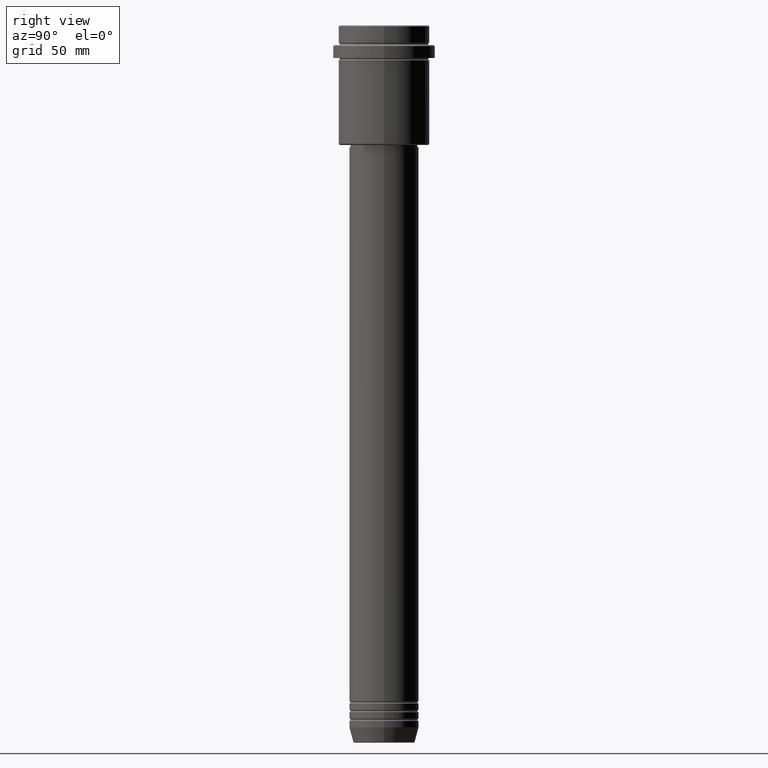
[diagram: clean part render]
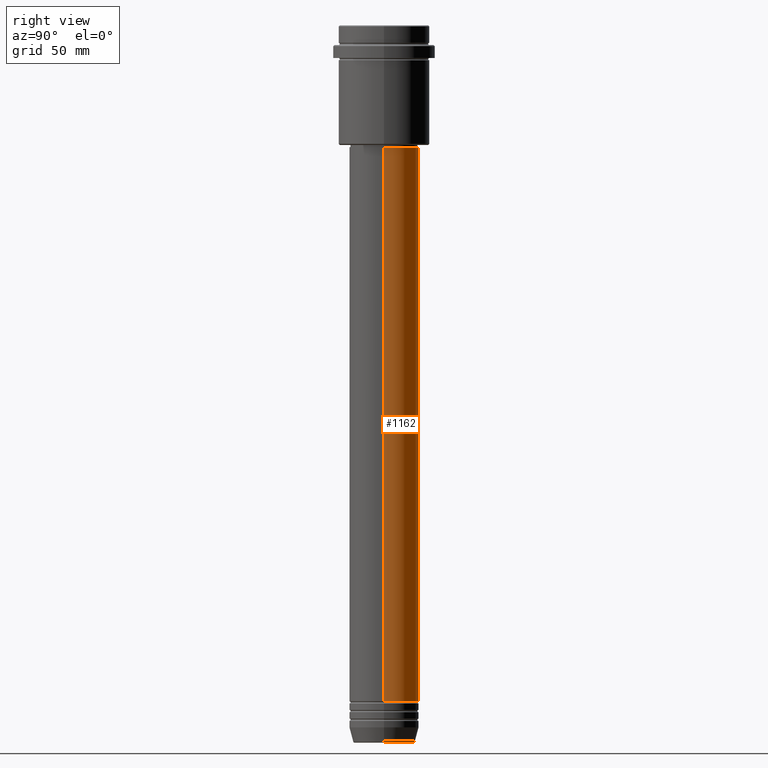
[diagram: same view with one face highlighted and labeled with its STEP entity id]
A machine part, right view. The second image highlights one B-rep face of the part: STEP entity #1162.
In plain terms, the highlighted cylindrical surface (edge-blend (fillet) strip) has radius 16 mm, axis along (-0, -0, 1).
Its self-contained STEP definition (entity closure, byte-faithful):
#5 = CARTESIAN_POINT ( 'NONE',  ( -16.00000000000000000, 1.959434878635765131E-15, 0.000000000000000000 ) ) ;
#43 = DIRECTION ( 'NONE',  ( -0.000000000000000000, -0.000000000000000000, 1.000000000000000000 ) ) ;
#66 = EDGE_CURVE ( 'NONE', #799, #493, #660, .T. ) ;
#140 = VECTOR ( 'NONE', #339, 1000.000000000000000 ) ;
#179 = EDGE_LOOP ( 'NONE', ( #826, #531, #426, #229 ) ) ;
#229 = ORIENTED_EDGE ( 'NONE', *, *, #1000, .F. ) ;
#262 = VERTEX_POINT ( 'NONE', #1054 ) ;
#294 = CARTESIAN_POINT ( 'NONE',  ( 0.000000000000000000, 0.000000000000000000, -310.9999999999998863 ) ) ;
#301 = AXIS2_PLACEMENT_3D ( 'NONE', #294, #958, #1300 ) ;
#339 = DIRECTION ( 'NONE',  ( -0.000000000000000000, -0.000000000000000000, 1.000000000000000000 ) ) ;
#359 = EDGE_CURVE ( 'NONE', #262, #799, #663, .T. ) ;
#426 = ORIENTED_EDGE ( 'NONE', *, *, #1096, .F. ) ;
#459 = CIRCLE ( 'NONE', #1315, 16.00000000000000355 ) ;
#493 = VERTEX_POINT ( 'NONE', #1314 ) ;
#531 = ORIENTED_EDGE ( 'NONE', *, *, #66, .T. ) ;
#532 = FACE_OUTER_BOUND ( 'NONE', #179, .T. ) ;
#579 = CARTESIAN_POINT ( 'NONE',  ( 0.000000000000000000, 0.000000000000000000, -55.99999999999991473 ) ) ;
#660 = LINE ( 'NONE', #5, #140 ) ;
#663 = CIRCLE ( 'NONE', #301, 16.00000000000000000 ) ;
#698 = CARTESIAN_POINT ( 'NONE',  ( 16.00000000000000000, 0.000000000000000000, 0.000000000000000000 ) ) ;
#710 = CARTESIAN_POINT ( 'NONE',  ( 16.00000000000000355, 0.000000000000000000, -55.99999999999991473 ) ) ;
#713 = DIRECTION ( 'NONE',  ( 1.000000000000000000, 0.000000000000000000, 0.000000000000000000 ) ) ;
#740 = AXIS2_PLACEMENT_3D ( 'NONE', #977, #1264, #713 ) ;
#788 = VECTOR ( 'NONE', #916, 1000.000000000000000 ) ;
#799 = VERTEX_POINT ( 'NONE', #853 ) ;
#826 = ORIENTED_EDGE ( 'NONE', *, *, #359, .T. ) ;
#853 = CARTESIAN_POINT ( 'NONE',  ( -16.00000000000000000, 1.959434878635765131E-15, -310.9999999999998863 ) ) ;
#916 = DIRECTION ( 'NONE',  ( -0.000000000000000000, -0.000000000000000000, 1.000000000000000000 ) ) ;
#958 = DIRECTION ( 'NONE',  ( -0.000000000000000000, -0.000000000000000000, 1.000000000000000000 ) ) ;
#977 = CARTESIAN_POINT ( 'NONE',  ( 0.000000000000000000, 0.000000000000000000, 0.000000000000000000 ) ) ;
#1000 = EDGE_CURVE ( 'NONE', #262, #1397, #1341, .T. ) ;
#1044 = CYLINDRICAL_SURFACE ( 'NONE', #740, 16.00000000000000000 ) ;
#1054 = CARTESIAN_POINT ( 'NONE',  ( 16.00000000000000000, 0.000000000000000000, -310.9999999999998863 ) ) ;
#1096 = EDGE_CURVE ( 'NONE', #1397, #493, #459, .T. ) ;
#1162 = ADVANCED_FACE ( 'NONE', ( #532 ), #1044, .T. ) ;
#1264 = DIRECTION ( 'NONE',  ( -0.000000000000000000, -0.000000000000000000, 1.000000000000000000 ) ) ;
#1300 = DIRECTION ( 'NONE',  ( 1.000000000000000000, 0.000000000000000000, 0.000000000000000000 ) ) ;
#1314 = CARTESIAN_POINT ( 'NONE',  ( -16.00000000000000355, 1.959434878635765526E-15, -55.99999999999991473 ) ) ;
#1315 = AXIS2_PLACEMENT_3D ( 'NONE', #579, #43, #1354 ) ;
#1341 = LINE ( 'NONE', #698, #788 ) ;
#1354 = DIRECTION ( 'NONE',  ( 1.000000000000000000, 0.000000000000000000, 0.000000000000000000 ) ) ;
#1397 = VERTEX_POINT ( 'NONE', #710 ) ;